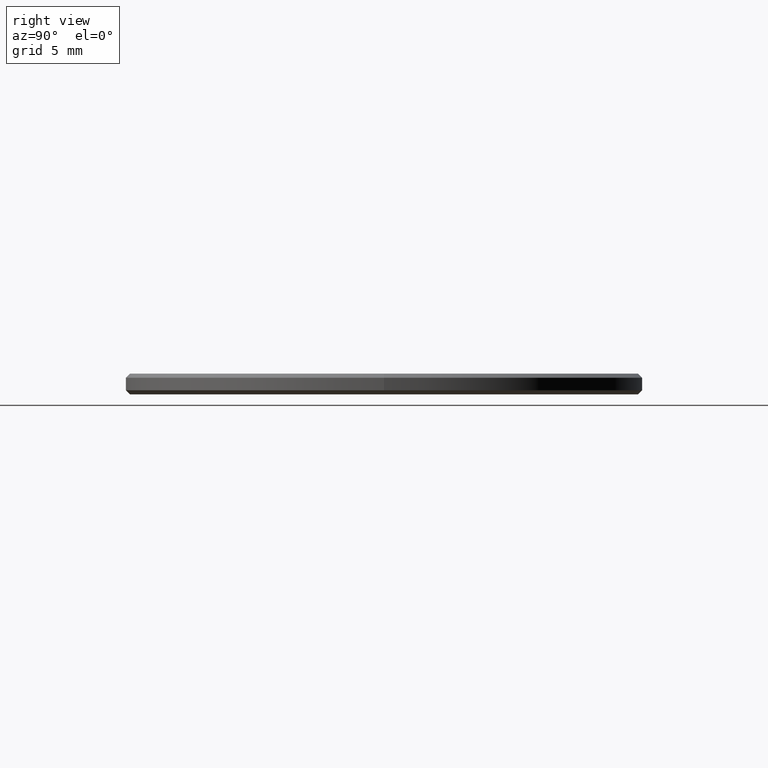
[diagram: clean part render]
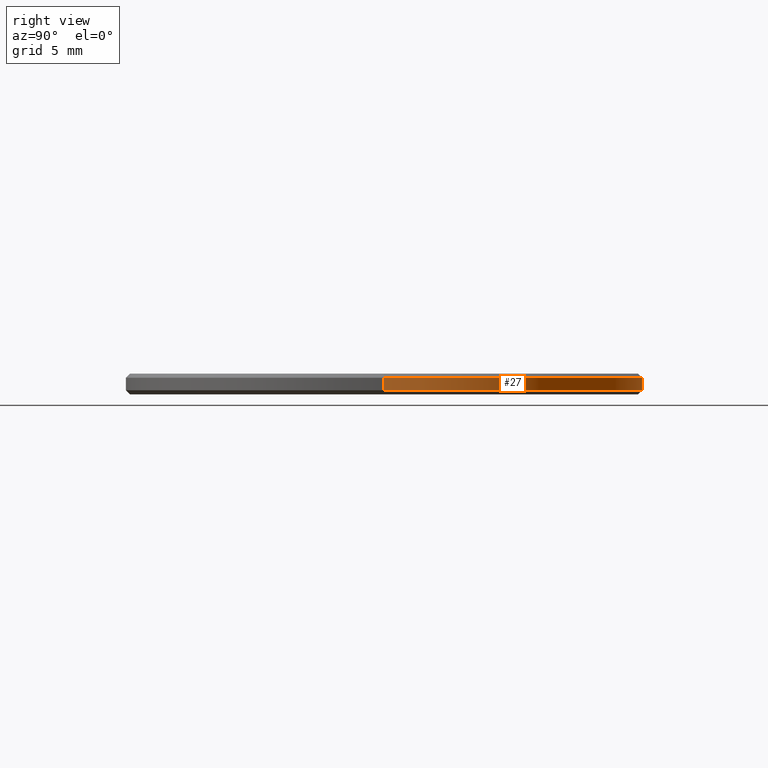
[diagram: same view with one face highlighted and labeled with its STEP entity id]
A machine part, right view. The second image highlights one B-rep face of the part: STEP entity #27.
In plain terms, the highlighted cylindrical surface (partial cylindrical patch) has radius 12.5 mm, axis along (-0, -0, -1).
Its self-contained STEP definition (entity closure, byte-faithful):
#3 = CARTESIAN_POINT ( 'NONE',  ( 12.50000000000000000, 1.530808498934191521E-15, 0.8000000000000029310 ) ) ;
#17 = EDGE_CURVE ( 'NONE', #231, #157, #103, .T. ) ;
#18 = CARTESIAN_POINT ( 'NONE',  ( 12.50000000000000000, 1.530808498934191521E-15, 0.1999999999999987899 ) ) ;
#27 = ADVANCED_FACE ( 'NONE', ( #45 ), #139, .T. ) ;
#45 = FACE_OUTER_BOUND ( 'NONE', #89, .T. ) ;
#54 = AXIS2_PLACEMENT_3D ( 'NONE', #131, #221, #75 ) ;
#57 = CARTESIAN_POINT ( 'NONE',  ( -12.50000000000000000, 0.000000000000000000, 1.000000000000000000 ) ) ;
#58 = CARTESIAN_POINT ( 'NONE',  ( -12.50000000000000000, 0.000000000000000000, 0.8000000000000029310 ) ) ;
#67 = ORIENTED_EDGE ( 'NONE', *, *, #228, .F. ) ;
#71 = CARTESIAN_POINT ( 'NONE',  ( 12.50000000000000000, 1.530808498934191521E-15, 1.000000000000000000 ) ) ;
#75 = DIRECTION ( 'NONE',  ( 1.000000000000000000, 0.000000000000000000, 0.000000000000000000 ) ) ;
#77 = LINE ( 'NONE', #57, #201 ) ;
#89 = EDGE_LOOP ( 'NONE', ( #224, #153, #90, #67 ) ) ;
#90 = ORIENTED_EDGE ( 'NONE', *, *, #133, .T. ) ;
#103 = LINE ( 'NONE', #71, #106 ) ;
#106 = VECTOR ( 'NONE', #211, 1000.000000000000000 ) ;
#122 = DIRECTION ( 'NONE',  ( -0.000000000000000000, -0.000000000000000000, -1.000000000000000000 ) ) ;
#131 = CARTESIAN_POINT ( 'NONE',  ( 0.000000000000000000, 0.000000000000000000, 0.8000000000000029310 ) ) ;
#132 = VERTEX_POINT ( 'NONE', #219 ) ;
#133 = EDGE_CURVE ( 'NONE', #157, #132, #183, .T. ) ;
#139 = CYLINDRICAL_SURFACE ( 'NONE', #152, 12.50000000000000000 ) ;
#148 = DIRECTION ( 'NONE',  ( -0.000000000000000000, -0.000000000000000000, 1.000000000000000000 ) ) ;
#151 = CIRCLE ( 'NONE', #54, 12.50000000000000000 ) ;
#152 = AXIS2_PLACEMENT_3D ( 'NONE', #233, #122, #190 ) ;
#153 = ORIENTED_EDGE ( 'NONE', *, *, #17, .T. ) ;
#157 = VERTEX_POINT ( 'NONE', #18 ) ;
#174 = VERTEX_POINT ( 'NONE', #58 ) ;
#183 = CIRCLE ( 'NONE', #216, 12.50000000000000000 ) ;
#190 = DIRECTION ( 'NONE',  ( -1.000000000000000000, 0.000000000000000000, 0.000000000000000000 ) ) ;
#198 = EDGE_CURVE ( 'NONE', #174, #231, #151, .T. ) ;
#199 = DIRECTION ( 'NONE',  ( 1.000000000000000000, 0.000000000000000000, 0.000000000000000000 ) ) ;
#201 = VECTOR ( 'NONE', #204, 1000.000000000000000 ) ;
#204 = DIRECTION ( 'NONE',  ( -0.000000000000000000, -0.000000000000000000, -1.000000000000000000 ) ) ;
#211 = DIRECTION ( 'NONE',  ( -0.000000000000000000, -0.000000000000000000, -1.000000000000000000 ) ) ;
#216 = AXIS2_PLACEMENT_3D ( 'NONE', #238, #148, #199 ) ;
#219 = CARTESIAN_POINT ( 'NONE',  ( -12.50000000000000000, 0.000000000000000000, 0.1999999999999987899 ) ) ;
#221 = DIRECTION ( 'NONE',  ( 0.000000000000000000, 0.000000000000000000, -1.000000000000000000 ) ) ;
#224 = ORIENTED_EDGE ( 'NONE', *, *, #198, .T. ) ;
#228 = EDGE_CURVE ( 'NONE', #174, #132, #77, .T. ) ;
#231 = VERTEX_POINT ( 'NONE', #3 ) ;
#233 = CARTESIAN_POINT ( 'NONE',  ( 0.000000000000000000, 0.000000000000000000, 1.000000000000000000 ) ) ;
#238 = CARTESIAN_POINT ( 'NONE',  ( 0.000000000000000000, 0.000000000000000000, 0.1999999999999987899 ) ) ;